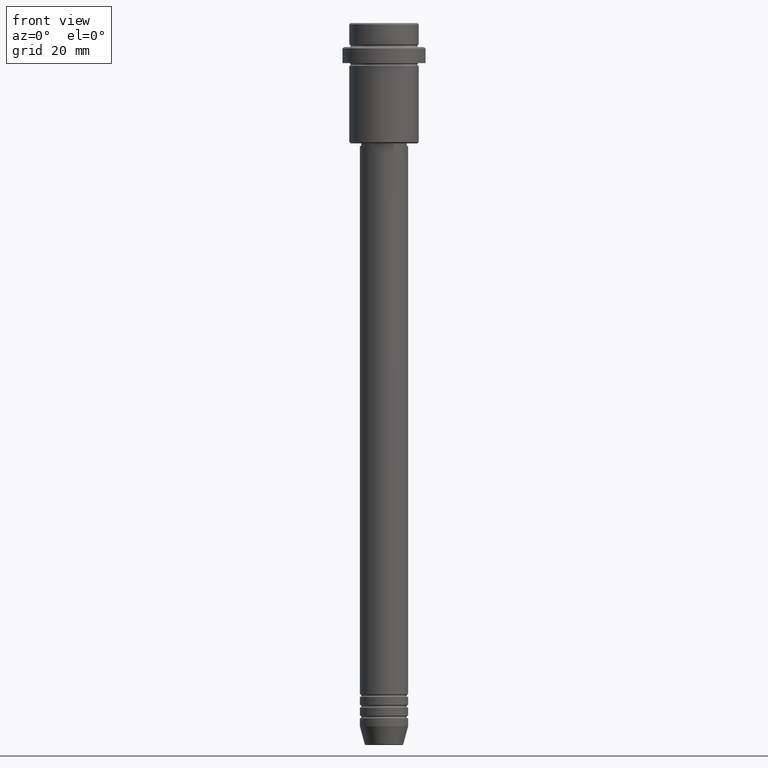
[diagram: clean part render]
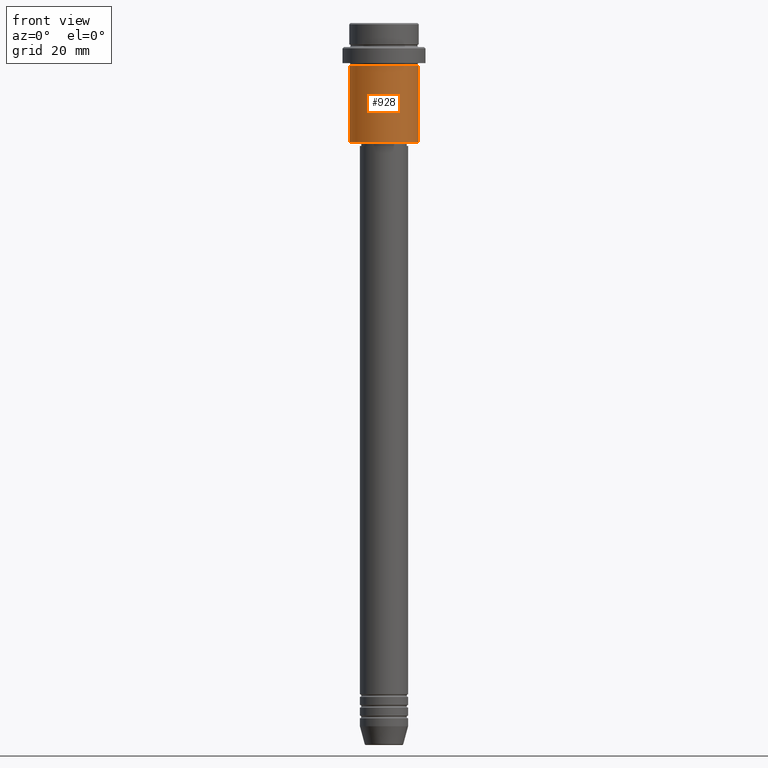
[diagram: same view with one face highlighted and labeled with its STEP entity id]
A machine part, front view. The second image highlights one B-rep face of the part: STEP entity #928.
In plain terms, the highlighted cylindrical surface (edge-blend (fillet) strip) has radius 13 mm, axis along (-0, -0, 1).
Its self-contained STEP definition (entity closure, byte-faithful):
#39 = EDGE_CURVE ( 'NONE', #157, #1067, #80, .T. ) ;
#57 = ORIENTED_EDGE ( 'NONE', *, *, #504, .T. ) ;
#62 = DIRECTION ( 'NONE',  ( -0.000000000000000000, -0.000000000000000000, 1.000000000000000000 ) ) ;
#68 = CARTESIAN_POINT ( 'NONE',  ( 0.000000000000000000, 0.000000000000000000, 0.000000000000000000 ) ) ;
#74 = DIRECTION ( 'NONE',  ( -0.000000000000000000, -0.000000000000000000, 1.000000000000000000 ) ) ;
#80 = LINE ( 'NONE', #517, #1266 ) ;
#140 = VECTOR ( 'NONE', #62, 1000.000000000000000 ) ;
#157 = VERTEX_POINT ( 'NONE', #1098 ) ;
#300 = AXIS2_PLACEMENT_3D ( 'NONE', #927, #433, #428 ) ;
#301 = AXIS2_PLACEMENT_3D ( 'NONE', #1140, #347, #788 ) ;
#344 = AXIS2_PLACEMENT_3D ( 'NONE', #68, #74, #703 ) ;
#347 = DIRECTION ( 'NONE',  ( -0.000000000000000000, -0.000000000000000000, 1.000000000000000000 ) ) ;
#361 = CARTESIAN_POINT ( 'NONE',  ( 13.00000000000000000, 0.000000000000000000, -16.00000000000000000 ) ) ;
#399 = VERTEX_POINT ( 'NONE', #361 ) ;
#428 = DIRECTION ( 'NONE',  ( 1.000000000000000000, 0.000000000000000000, 0.000000000000000000 ) ) ;
#433 = DIRECTION ( 'NONE',  ( -0.000000000000000000, -0.000000000000000000, 1.000000000000000000 ) ) ;
#479 = CYLINDRICAL_SURFACE ( 'NONE', #344, 13.00000000000000000 ) ;
#504 = EDGE_CURVE ( 'NONE', #988, #399, #1049, .T. ) ;
#517 = CARTESIAN_POINT ( 'NONE',  ( -13.00000000000000000, 1.592040838891559095E-15, 0.000000000000000000 ) ) ;
#561 = EDGE_CURVE ( 'NONE', #1067, #399, #918, .T. ) ;
#626 = CARTESIAN_POINT ( 'NONE',  ( -13.00000000000000000, 1.592040838891559095E-15, -16.00000000000000000 ) ) ;
#700 = CARTESIAN_POINT ( 'NONE',  ( 13.00000000000000000, 0.000000000000000000, 0.000000000000000000 ) ) ;
#703 = DIRECTION ( 'NONE',  ( 1.000000000000000000, 0.000000000000000000, 0.000000000000000000 ) ) ;
#726 = CARTESIAN_POINT ( 'NONE',  ( 13.00000000000000000, 0.000000000000000000, -44.50000000000004263 ) ) ;
#729 = EDGE_CURVE ( 'NONE', #157, #988, #781, .T. ) ;
#781 = CIRCLE ( 'NONE', #301, 13.00000000000000000 ) ;
#788 = DIRECTION ( 'NONE',  ( -1.000000000000000000, 0.000000000000000000, 0.000000000000000000 ) ) ;
#833 = ORIENTED_EDGE ( 'NONE', *, *, #39, .F. ) ;
#918 = CIRCLE ( 'NONE', #300, 13.00000000000000000 ) ;
#927 = CARTESIAN_POINT ( 'NONE',  ( 0.000000000000000000, 0.000000000000000000, -16.00000000000000000 ) ) ;
#928 = ADVANCED_FACE ( 'NONE', ( #1025 ), #479, .T. ) ;
#957 = ORIENTED_EDGE ( 'NONE', *, *, #561, .F. ) ;
#988 = VERTEX_POINT ( 'NONE', #726 ) ;
#1025 = FACE_OUTER_BOUND ( 'NONE', #1262, .T. ) ;
#1030 = DIRECTION ( 'NONE',  ( -0.000000000000000000, -0.000000000000000000, 1.000000000000000000 ) ) ;
#1049 = LINE ( 'NONE', #700, #140 ) ;
#1067 = VERTEX_POINT ( 'NONE', #626 ) ;
#1098 = CARTESIAN_POINT ( 'NONE',  ( -13.00000000000000000, 1.592040838891559095E-15, -44.50000000000004263 ) ) ;
#1140 = CARTESIAN_POINT ( 'NONE',  ( 0.000000000000000000, 0.000000000000000000, -44.50000000000004263 ) ) ;
#1143 = ORIENTED_EDGE ( 'NONE', *, *, #729, .T. ) ;
#1262 = EDGE_LOOP ( 'NONE', ( #833, #1143, #57, #957 ) ) ;
#1266 = VECTOR ( 'NONE', #1030, 1000.000000000000000 ) ;